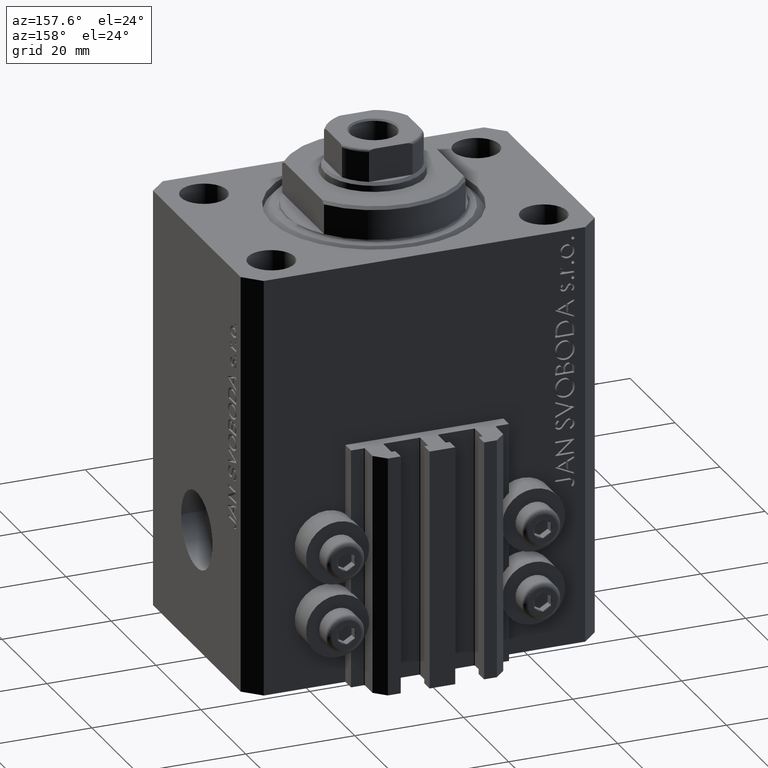
[diagram: clean part render]
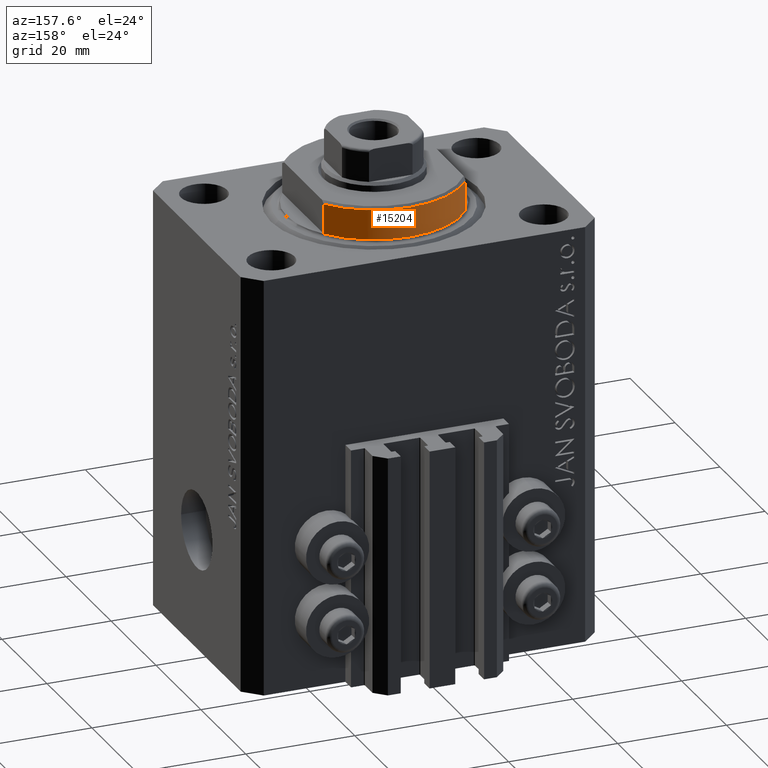
[diagram: same view with one face highlighted and labeled with its STEP entity id]
A machine part, auxiliary view. The second image highlights one B-rep face of the part: STEP entity #15204.
In plain terms, the highlighted cylindrical surface (partial cylindrical patch) has radius 16 mm, axis along (0, 0, -1).
Its self-contained STEP definition (entity closure, byte-faithful):
#564 = VERTEX_POINT ( 'NONE', #7979 ) ;
#1312 = EDGE_CURVE ( 'NONE', #43966, #2979, #24672, .T. ) ;
#1329 = DIRECTION ( 'NONE',  ( 1.000000000000000000, 0.000000000000000000, 0.000000000000000000 ) ) ;
#2979 = VERTEX_POINT ( 'NONE', #15132 ) ;
#4935 = CARTESIAN_POINT ( 'NONE',  ( 0.000000000000000000, 0.000000000000000000, -6.500000000000000000 ) ) ;
#6042 = ORIENTED_EDGE ( 'NONE', *, *, #1312, .T. ) ;
#7979 = CARTESIAN_POINT ( 'NONE',  ( -13.00000000000000000, 9.327379053088815652, -0.4999999999999995559 ) ) ;
#9331 = AXIS2_PLACEMENT_3D ( 'NONE', #23335, #19953, #23095 ) ;
#9931 = ORIENTED_EDGE ( 'NONE', *, *, #16995, .T. ) ;
#10204 = LINE ( 'NONE', #39261, #21203 ) ;
#12263 = CARTESIAN_POINT ( 'NONE',  ( 0.000000000000000000, 0.000000000000000000, -0.4999999999999995559 ) ) ;
#13192 = CARTESIAN_POINT ( 'NONE',  ( 13.00000000000000000, 9.327379053088815652, -0.4999999999999995559 ) ) ;
#14036 = CIRCLE ( 'NONE', #38577, 16.00000000000000000 ) ;
#14998 = FACE_OUTER_BOUND ( 'NONE', #27072, .T. ) ;
#15132 = CARTESIAN_POINT ( 'NONE',  ( -13.00000000000000000, 9.327379053088916905, -6.000000000000021316 ) ) ;
#15204 = ADVANCED_FACE ( 'NONE', ( #14998 ), #22686, .T. ) ;
#15489 = LINE ( 'NONE', #41662, #19634 ) ;
#16519 = AXIS2_PLACEMENT_3D ( 'NONE', #4935, #29650, #1329 ) ;
#16900 = EDGE_CURVE ( 'NONE', #43966, #17552, #15489, .T. ) ;
#16995 = EDGE_CURVE ( 'NONE', #2979, #564, #10204, .T. ) ;
#17552 = VERTEX_POINT ( 'NONE', #13192 ) ;
#19634 = VECTOR ( 'NONE', #26304, 1000.000000000000000 ) ;
#19953 = DIRECTION ( 'NONE',  ( 0.000000000000000000, 0.000000000000000000, 1.000000000000000000 ) ) ;
#20429 = DIRECTION ( 'NONE',  ( 1.000000000000000000, -8.881784197001252323E-16, 0.000000000000000000 ) ) ;
#20708 = ORIENTED_EDGE ( 'NONE', *, *, #29761, .T. ) ;
#21203 = VECTOR ( 'NONE', #24380, 1000.000000000000000 ) ;
#22686 = CYLINDRICAL_SURFACE ( 'NONE', #16519, 16.00000000000000000 ) ;
#23095 = DIRECTION ( 'NONE',  ( -1.000000000000000000, 0.000000000000000000, 0.000000000000000000 ) ) ;
#23335 = CARTESIAN_POINT ( 'NONE',  ( 0.000000000000000000, 0.000000000000000000, -6.000000000000030198 ) ) ;
#24030 = DIRECTION ( 'NONE',  ( -0.000000000000000000, -0.000000000000000000, -1.000000000000000000 ) ) ;
#24380 = DIRECTION ( 'NONE',  ( -0.000000000000000000, -0.000000000000000000, 1.000000000000000000 ) ) ;
#24672 = CIRCLE ( 'NONE', #9331, 16.00000000000000000 ) ;
#26304 = DIRECTION ( 'NONE',  ( -0.000000000000000000, -0.000000000000000000, 1.000000000000000000 ) ) ;
#27072 = EDGE_LOOP ( 'NONE', ( #27930, #6042, #9931, #20708 ) ) ;
#27490 = CARTESIAN_POINT ( 'NONE',  ( 13.00000000000000000, 9.327379053088916905, -6.000000000000021316 ) ) ;
#27930 = ORIENTED_EDGE ( 'NONE', *, *, #16900, .F. ) ;
#29650 = DIRECTION ( 'NONE',  ( -0.000000000000000000, -0.000000000000000000, 1.000000000000000000 ) ) ;
#29761 = EDGE_CURVE ( 'NONE', #564, #17552, #14036, .T. ) ;
#38577 = AXIS2_PLACEMENT_3D ( 'NONE', #12263, #24030, #20429 ) ;
#39261 = CARTESIAN_POINT ( 'NONE',  ( -13.00000000000000000, 9.327379053088813876, -6.500000000000000000 ) ) ;
#41662 = CARTESIAN_POINT ( 'NONE',  ( 13.00000000000000000, 9.327379053088813876, -6.500000000000000000 ) ) ;
#43966 = VERTEX_POINT ( 'NONE', #27490 ) ;